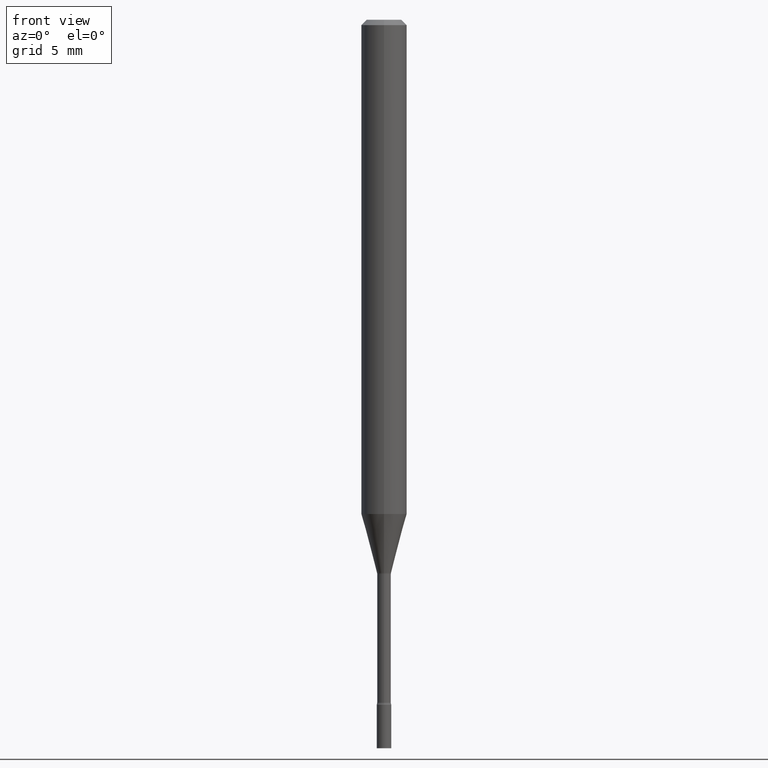
[diagram: clean part render]
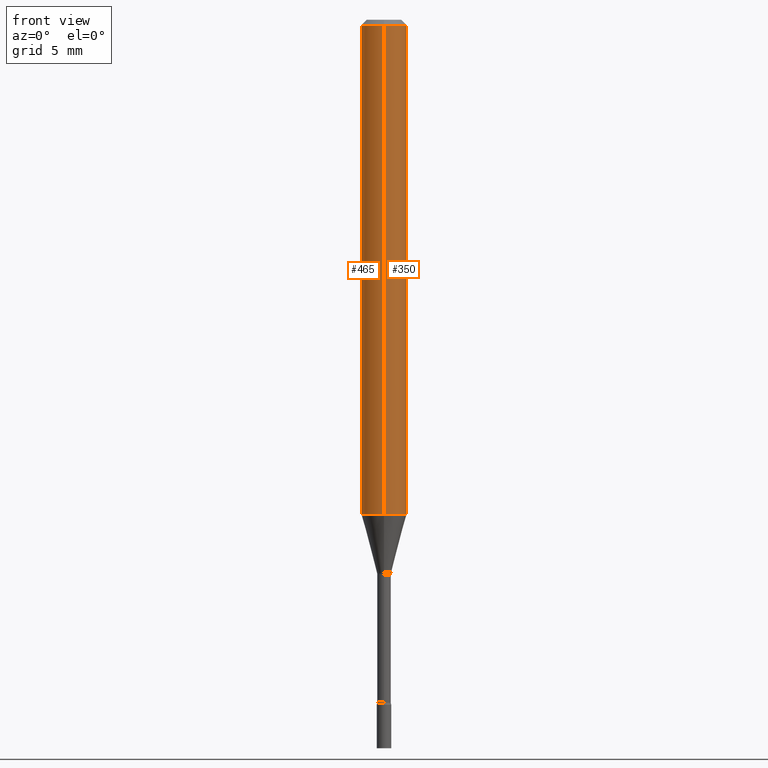
[diagram: same view with one multi-face feature highlighted, each face labeled with its STEP entity id]
A machine part, front view. The highlighted faces form ONE feature: a constant-radius fillet chain: 2 tangent blend faces with common blend radius 1.5875 mm. The faces share edges in the B-rep.
Their STEP definitions:
[1] entity #465 (Cylinder):
#32 = EDGE_LOOP ( 'NONE', ( #406, #202, #127, #42 ) ) ;
#42 = ORIENTED_EDGE ( 'NONE', *, *, #285, .F. ) ;
#46 = CARTESIAN_POINT ( 'NONE',  ( 4.440892098500625669E-16, 0.06250000000000000000, -2.182151916919739674E-16 ) ) ;
#59 = DIRECTION ( 'NONE',  ( -6.982962677686265922E-15, -1.000000000000000000, 3.491443067071583478E-15 ) ) ;
#62 = FACE_OUTER_BOUND ( 'NONE', #32, .T. ) ;
#95 = AXIS2_PLACEMENT_3D ( 'NONE', #293, #337, #59 ) ;
#116 = DIRECTION ( 'NONE',  ( -6.982962677686265922E-15, -1.000000000000000000, 3.483106191921935554E-15 ) ) ;
#124 = CARTESIAN_POINT ( 'NONE',  ( -4.364351673553585373E-16, -0.06250000000000476008, -1.356909379709239971 ) ) ;
#127 = ORIENTED_EDGE ( 'NONE', *, *, #144, .T. ) ;
#143 = CARTESIAN_POINT ( 'NONE',  ( -4.364351673553912750E-16, -0.06250000000000005551, -0.01499999999999981209 ) ) ;
#144 = EDGE_CURVE ( 'NONE', #386, #429, #402, .T. ) ;
#202 = ORIENTED_EDGE ( 'NONE', *, *, #248, .T. ) ;
#210 = EDGE_CURVE ( 'NONE', #401, #495, #407, .T. ) ;
#248 = EDGE_CURVE ( 'NONE', #401, #386, #497, .T. ) ;
#260 = CARTESIAN_POINT ( 'NONE',  ( 4.440892098500960442E-16, 0.06249999999999995837, -0.01500000000000024751 ) ) ;
#262 = CARTESIAN_POINT ( 'NONE',  ( 3.668243296830576009E-31, -5.237164600607386088E-17, -0.01500000000000003067 ) ) ;
#285 = EDGE_CURVE ( 'NONE', #495, #429, #391, .T. ) ;
#291 = DIRECTION ( 'NONE',  ( -6.982962677686265922E-15, -1.000000000000000000, 4.370956789862821150E-15 ) ) ;
#293 = CARTESIAN_POINT ( 'NONE',  ( 0.000000000000000000, 0.000000000000000000, 0.000000000000000000 ) ) ;
#296 = DIRECTION ( 'NONE',  ( -2.445495531220379276E-29, 3.491443067071583478E-15, 1.000000000000000000 ) ) ;
#315 = AXIS2_PLACEMENT_3D ( 'NONE', #262, #296, #116 ) ;
#317 = DIRECTION ( 'NONE',  ( -2.445495531220379276E-29, 3.491443067071583478E-15, 1.000000000000000000 ) ) ;
#329 = CARTESIAN_POINT ( 'NONE',  ( 3.318315824349964165E-29, -4.737571846430229129E-15, -1.356909379709240193 ) ) ;
#330 = CARTESIAN_POINT ( 'NONE',  ( 4.440892098500955511E-16, 0.06249999999999524686, -1.356909379709240415 ) ) ;
#337 = DIRECTION ( 'NONE',  ( -2.445495531220379276E-29, 3.491443067071583478E-15, 1.000000000000000000 ) ) ;
#375 = CYLINDRICAL_SURFACE ( 'NONE', #95, 0.06250000000000000000 ) ;
#380 = AXIS2_PLACEMENT_3D ( 'NONE', #329, #496, #291 ) ;
#386 = VERTEX_POINT ( 'NONE', #124 ) ;
#391 = CIRCLE ( 'NONE', #315, 0.06250000000000000000 ) ;
#398 = CARTESIAN_POINT ( 'NONE',  ( -4.364351673553916201E-16, -0.06250000000000000000, 2.182151916919739674E-16 ) ) ;
#401 = VERTEX_POINT ( 'NONE', #330 ) ;
#402 = LINE ( 'NONE', #398, #460 ) ;
#406 = ORIENTED_EDGE ( 'NONE', *, *, #210, .F. ) ;
#407 = LINE ( 'NONE', #46, #474 ) ;
#413 = DIRECTION ( 'NONE',  ( -2.445495531220379276E-29, 3.491443067071583478E-15, 1.000000000000000000 ) ) ;
#429 = VERTEX_POINT ( 'NONE', #143 ) ;
#460 = VECTOR ( 'NONE', #317, 39.37007874015748143 ) ;
#465 = ADVANCED_FACE ( 'NONE', ( #62 ), #375, .T. ) ;
#474 = VECTOR ( 'NONE', #413, 39.37007874015748143 ) ;
#495 = VERTEX_POINT ( 'NONE', #260 ) ;
#496 = DIRECTION ( 'NONE',  ( -2.445495531220379276E-29, 3.491443067071583478E-15, 1.000000000000000000 ) ) ;
#497 = CIRCLE ( 'NONE', #380, 0.06250000000000000000 ) ;
[2] entity #350 (Cylinder):
#6 = ORIENTED_EDGE ( 'NONE', *, *, #210, .T. ) ;
#46 = CARTESIAN_POINT ( 'NONE',  ( 4.440892098500625669E-16, 0.06250000000000000000, -2.182151916919739674E-16 ) ) ;
#110 = AXIS2_PLACEMENT_3D ( 'NONE', #446, #247, #213 ) ;
#111 = CIRCLE ( 'NONE', #289, 0.06250000000000000000 ) ;
#124 = CARTESIAN_POINT ( 'NONE',  ( -4.364351673553585373E-16, -0.06250000000000476008, -1.356909379709239971 ) ) ;
#143 = CARTESIAN_POINT ( 'NONE',  ( -4.364351673553912750E-16, -0.06250000000000005551, -0.01499999999999981209 ) ) ;
#144 = EDGE_CURVE ( 'NONE', #386, #429, #402, .T. ) ;
#152 = DIRECTION ( 'NONE',  ( -6.982962677686265922E-15, -1.000000000000000000, 3.491443067071583478E-15 ) ) ;
#162 = FACE_OUTER_BOUND ( 'NONE', #188, .T. ) ;
#181 = EDGE_CURVE ( 'NONE', #429, #495, #314, .T. ) ;
#188 = EDGE_LOOP ( 'NONE', ( #426, #6, #266, #508 ) ) ;
#194 = CARTESIAN_POINT ( 'NONE',  ( 0.000000000000000000, 0.000000000000000000, 0.000000000000000000 ) ) ;
#200 = CYLINDRICAL_SURFACE ( 'NONE', #310, 0.06250000000000000000 ) ;
#203 = DIRECTION ( 'NONE',  ( -2.445495531220379276E-29, 3.491443067071583478E-15, 1.000000000000000000 ) ) ;
#210 = EDGE_CURVE ( 'NONE', #401, #495, #407, .T. ) ;
#213 = DIRECTION ( 'NONE',  ( -6.982962677686265922E-15, -1.000000000000000000, 3.483106191921935554E-15 ) ) ;
#247 = DIRECTION ( 'NONE',  ( -2.445495531220379276E-29, 3.491443067071583478E-15, 1.000000000000000000 ) ) ;
#252 = CARTESIAN_POINT ( 'NONE',  ( 3.318315824349964165E-29, -4.737571846430229129E-15, -1.356909379709240193 ) ) ;
#260 = CARTESIAN_POINT ( 'NONE',  ( 4.440892098500960442E-16, 0.06249999999999995837, -0.01500000000000024751 ) ) ;
#266 = ORIENTED_EDGE ( 'NONE', *, *, #181, .F. ) ;
#277 = DIRECTION ( 'NONE',  ( -2.445495531220379276E-29, 3.491443067071583478E-15, 1.000000000000000000 ) ) ;
#289 = AXIS2_PLACEMENT_3D ( 'NONE', #252, #203, #321 ) ;
#310 = AXIS2_PLACEMENT_3D ( 'NONE', #194, #277, #152 ) ;
#314 = CIRCLE ( 'NONE', #110, 0.06250000000000000000 ) ;
#317 = DIRECTION ( 'NONE',  ( -2.445495531220379276E-29, 3.491443067071583478E-15, 1.000000000000000000 ) ) ;
#321 = DIRECTION ( 'NONE',  ( -6.982962677686265922E-15, -1.000000000000000000, 4.370956789862821150E-15 ) ) ;
#330 = CARTESIAN_POINT ( 'NONE',  ( 4.440892098500955511E-16, 0.06249999999999524686, -1.356909379709240415 ) ) ;
#350 = ADVANCED_FACE ( 'NONE', ( #162 ), #200, .T. ) ;
#376 = EDGE_CURVE ( 'NONE', #386, #401, #111, .T. ) ;
#386 = VERTEX_POINT ( 'NONE', #124 ) ;
#398 = CARTESIAN_POINT ( 'NONE',  ( -4.364351673553916201E-16, -0.06250000000000000000, 2.182151916919739674E-16 ) ) ;
#401 = VERTEX_POINT ( 'NONE', #330 ) ;
#402 = LINE ( 'NONE', #398, #460 ) ;
#407 = LINE ( 'NONE', #46, #474 ) ;
#413 = DIRECTION ( 'NONE',  ( -2.445495531220379276E-29, 3.491443067071583478E-15, 1.000000000000000000 ) ) ;
#426 = ORIENTED_EDGE ( 'NONE', *, *, #376, .T. ) ;
#429 = VERTEX_POINT ( 'NONE', #143 ) ;
#446 = CARTESIAN_POINT ( 'NONE',  ( 3.668243296830576009E-31, -5.237164600607386088E-17, -0.01500000000000003067 ) ) ;
#460 = VECTOR ( 'NONE', #317, 39.37007874015748143 ) ;
#474 = VECTOR ( 'NONE', #413, 39.37007874015748143 ) ;
#495 = VERTEX_POINT ( 'NONE', #260 ) ;
#508 = ORIENTED_EDGE ( 'NONE', *, *, #144, .F. ) ;